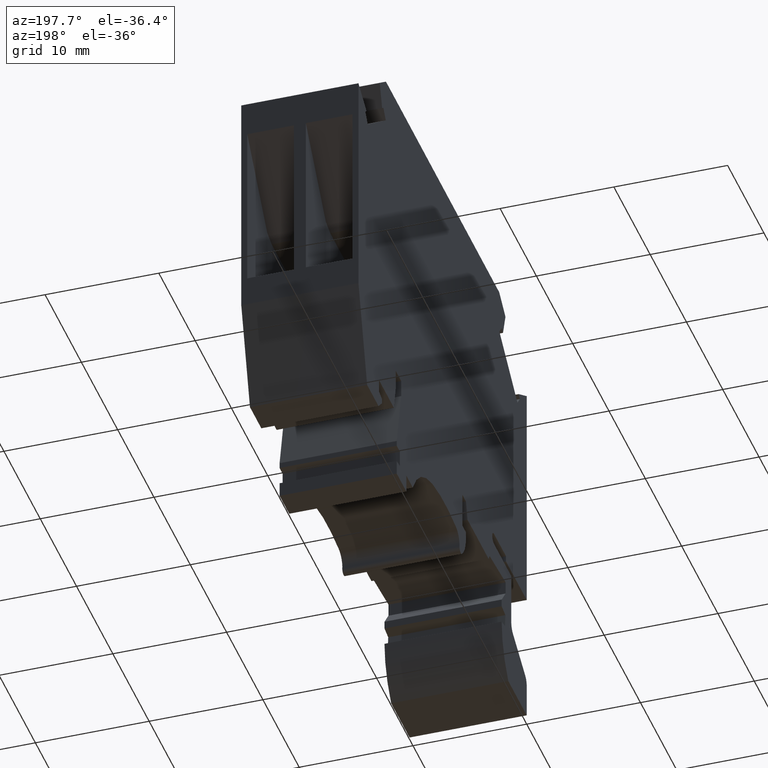
[diagram: clean part render]
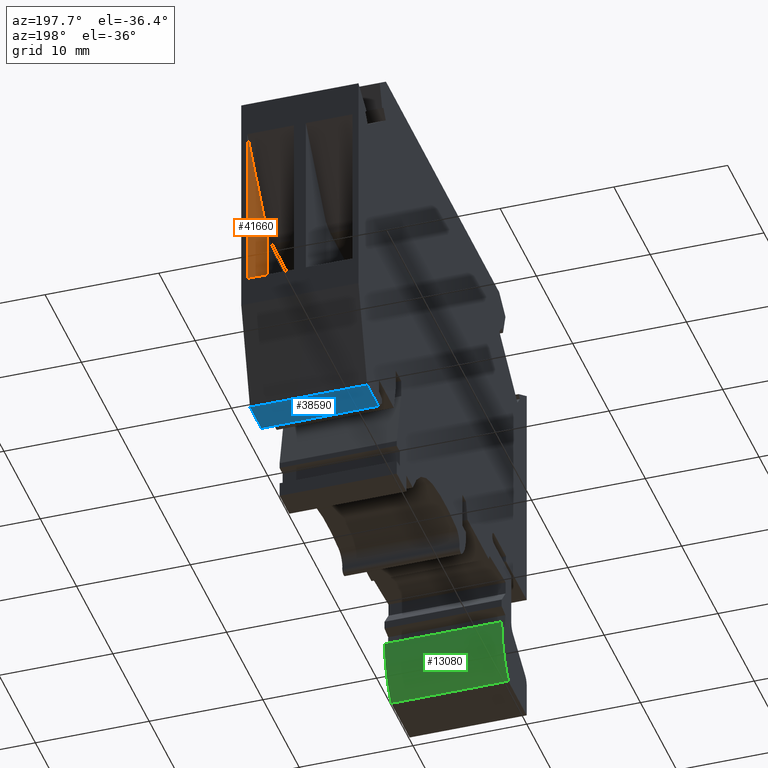
[diagram: same view with three faces highlighted in distinct colors, each labeled with its STEP entity id]
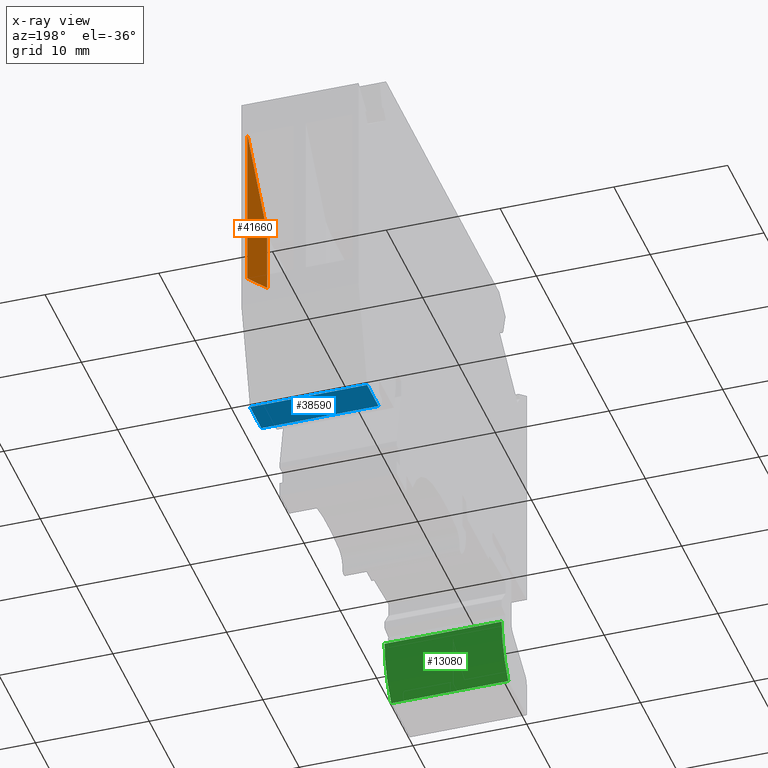
[diagram: x-ray of the same camera — body ghosted, the three highlighted faces saturated]
A machine part, auxiliary view with three faces highlighted in distinct colors.
The next image is the same camera in x-ray (body ghosted, the three faces saturated) — at least one of them is partly hidden behind the body in this view.
Their STEP definitions:

[orange] entity #41660 — the highlighted planar face has unit normal (1, -0, 0).
#34440=CARTESIAN_POINT('',(1.49790146619231,34.3295237515583,9.775));
#34450=VERTEX_POINT('',#34440);
#34480=CARTESIAN_POINT('',(1.49790146619231,10.9158644389662,9.775));
#34490=DIRECTION('',(0.,1.,0.));
#34500=VECTOR('',#34490,1.);
#34510=LINE('',#34480,#34500);
#34520=CARTESIAN_POINT('',(1.49790146619231,19.3295237515583,9.775));
#34530=VERTEX_POINT('',#34520);
#34540=EDGE_CURVE('',#34530,#34450,#34510,.T.);
#39910=CARTESIAN_POINT('',(-4.02565782276799,27.9338235222359,
9.77500000000001));
#39920=VERTEX_POINT('',#39910);
#39970=CARTESIAN_POINT('',(-19.9165433974443,9.53385075155829,9.775));
#39980=DIRECTION('',(-0.653619870346096,-0.756823007769156,0.));
#39990=VECTOR('',#39980,1.);
#40000=LINE('',#39970,#39990);
#40010=EDGE_CURVE('',#34450,#39920,#40000,.T.);
#41240=CARTESIAN_POINT('',(-4.02565782276799,9.53385075155829,
9.77500000000001));
#41250=DIRECTION('',(0.,1.,0.));
#41260=VECTOR('',#41250,1.);
#41270=LINE('',#41240,#41260);
#41280=CARTESIAN_POINT('',(-4.02565782276799,22.1919350430033,
9.77500000000001));
#41290=VERTEX_POINT('',#41280);
#41300=EDGE_CURVE('',#41290,#39920,#41270,.T.);
#41500=CARTESIAN_POINT('',(1.4979014661923,34.3295237515583,9.775));
#41510=DIRECTION('',(0.,-0.,1.));
#41520=DIRECTION('',(0.,1.,0.));
#41530=AXIS2_PLACEMENT_3D('',#41500,#41510,#41520);
#41540=PLANE('',#41530);
#41550=CARTESIAN_POINT('',(13.4527094661923,13.1343196058094,9.775));
#41560=DIRECTION('',(0.887863315807394,-0.460107305357674,0.));
#41570=VECTOR('',#41560,1.);
#41580=LINE('',#41550,#41570);
#41590=EDGE_CURVE('',#41290,#34530,#41580,.T.);
#41600=ORIENTED_EDGE('',*,*,#41590,.F.);
#41610=ORIENTED_EDGE('',*,*,#34540,.F.);
#41620=ORIENTED_EDGE('',*,*,#40010,.F.);
#41630=ORIENTED_EDGE('',*,*,#41300,.T.);
#41640=EDGE_LOOP('',(#41630,#41620,#41610,#41600));
#41650=FACE_OUTER_BOUND('',#41640,.T.);
#41660=ADVANCED_FACE('',(#41650),#41540,.F.);

[blue] entity #38590 — the highlighted planar face has unit normal (-0, -0, 1).
#1720=CARTESIAN_POINT('',(-0.892444557849712,7.7295237515582,10.3));
#1730=VERTEX_POINT('',#1720);
#1760=CARTESIAN_POINT('',(-56.8069065338077,7.7295237515582,10.3));
#1770=DIRECTION('',(1.,0.,0.));
#1780=VECTOR('',#1770,1.);
#1790=LINE('',#1760,#1780);
#1800=CARTESIAN_POINT('',(-4.02709853380777,7.7295237515582,10.3));
#1810=VERTEX_POINT('',#1800);
#1820=EDGE_CURVE('',#1810,#1730,#1790,.T.);
#9640=CARTESIAN_POINT('',(-4.02709853380777,7.7295237515582,
-7.105427357601E-15));
#9650=VERTEX_POINT('',#9640);
#9680=CARTESIAN_POINT('',(-56.8069065338077,7.7295237515582,
3.5527136788005E-15));
#9690=DIRECTION('',(1.,0.,0.));
#9700=VECTOR('',#9690,1.);
#9710=LINE('',#9680,#9700);
#9720=CARTESIAN_POINT('',(-0.892444557849712,7.7295237515582,
-7.105427357601E-15));
#9730=VERTEX_POINT('',#9720);
#9740=EDGE_CURVE('',#9650,#9730,#9710,.T.);
#38270=CARTESIAN_POINT('',(-0.892444557849707,7.7295237515582,5.15));
#38280=DIRECTION('',(0.,0.,1.));
#38290=VECTOR('',#38280,1.);
#38300=LINE('',#38270,#38290);
#38310=EDGE_CURVE('',#9730,#1730,#38300,.T.);
#38430=CARTESIAN_POINT('',(-2.42709853380763,7.7295237515582,5.15));
#38440=DIRECTION('',(-0.,1.,0.));
#38450=DIRECTION('',(1.,0.,0.));
#38460=AXIS2_PLACEMENT_3D('',#38430,#38440,#38450);
#38470=PLANE('',#38460);
#38480=ORIENTED_EDGE('',*,*,#1820,.F.);
#38490=ORIENTED_EDGE('',*,*,#38310,.T.);
#38500=ORIENTED_EDGE('',*,*,#9740,.T.);
#38510=CARTESIAN_POINT('',(-4.02709853380777,7.7295237515582,5.15));
#38520=DIRECTION('',(0.,0.,1.));
#38530=VECTOR('',#38520,1.);
#38540=LINE('',#38510,#38530);
#38550=EDGE_CURVE('',#9650,#1810,#38540,.T.);
#38560=ORIENTED_EDGE('',*,*,#38550,.F.);
#38570=EDGE_LOOP('',(#38560,#38500,#38490,#38480));
#38580=FACE_OUTER_BOUND('',#38570,.T.);
#38590=ADVANCED_FACE('',(#38580),#38470,.F.);

[green] entity #13080 — the highlighted cylindrical surface (partial cylindrical patch) has radius 7.47 mm, axis along (1, -0, 0).
#4730=CARTESIAN_POINT('',(-37.949420700094,9.12894476048504,10.3));
#4740=VERTEX_POINT('',#4730);
#4770=CARTESIAN_POINT('',(-45.4194206776555,9.12952375155828,10.3));
#4780=DIRECTION('',(0.,0.,1.));
#4790=DIRECTION('',(1.,0.,0.));
#4800=AXIS2_PLACEMENT_3D('',#4770,#4780,#4790);
#4810=CIRCLE('',#4800,7.47);
#4820=CARTESIAN_POINT('',(-39.7810787227897,4.22952375155828,10.3));
#4830=VERTEX_POINT('',#4820);
#4840=EDGE_CURVE('',#4830,#4740,#4810,.T.);
#6620=CARTESIAN_POINT('',(-39.7810787227897,4.22952375155828,
-7.105427357601E-15));
#6630=VERTEX_POINT('',#6620);
#6660=CARTESIAN_POINT('',(-45.4194206776555,9.12952375155828,
3.5527136788005E-15));
#6670=DIRECTION('',(0.,0.,1.));
#6680=DIRECTION('',(1.,0.,0.));
#6690=AXIS2_PLACEMENT_3D('',#6660,#6670,#6680);
#6700=CIRCLE('',#6690,7.47);
#6710=CARTESIAN_POINT('',(-37.949420700094,9.12894476048504,
-7.105427357601E-15));
#6720=VERTEX_POINT('',#6710);
#6730=EDGE_CURVE('',#6630,#6720,#6700,.T.);
#12870=CARTESIAN_POINT('',(-45.4194206776555,9.12952375155828,5.15));
#12880=DIRECTION('',(0.,0.,1.));
#12890=DIRECTION('',(1.,0.,0.));
#12900=AXIS2_PLACEMENT_3D('',#12870,#12880,#12890);
#12910=CYLINDRICAL_SURFACE('',#12900,7.47);
#12920=ORIENTED_EDGE('',*,*,#4840,.F.);
#12930=CARTESIAN_POINT('',(-37.949420700094,9.12894476048504,5.15));
#12940=DIRECTION('',(0.,0.,1.));
#12950=VECTOR('',#12940,1.);
#12960=LINE('',#12930,#12950);
#12970=EDGE_CURVE('',#6720,#4740,#12960,.T.);
#12980=ORIENTED_EDGE('',*,*,#12970,.T.);
#12990=ORIENTED_EDGE('',*,*,#6730,.T.);
#13000=CARTESIAN_POINT('',(-39.7810787227897,4.22952375155828,5.15));
#13010=DIRECTION('',(0.,0.,1.));
#13020=VECTOR('',#13010,1.);
#13030=LINE('',#13000,#13020);
#13040=EDGE_CURVE('',#6630,#4830,#13030,.T.);
#13050=ORIENTED_EDGE('',*,*,#13040,.F.);
#13060=EDGE_LOOP('',(#13050,#12990,#12980,#12920));
#13070=FACE_OUTER_BOUND('',#13060,.T.);
#13080=ADVANCED_FACE('',(#13070),#12910,.T.);